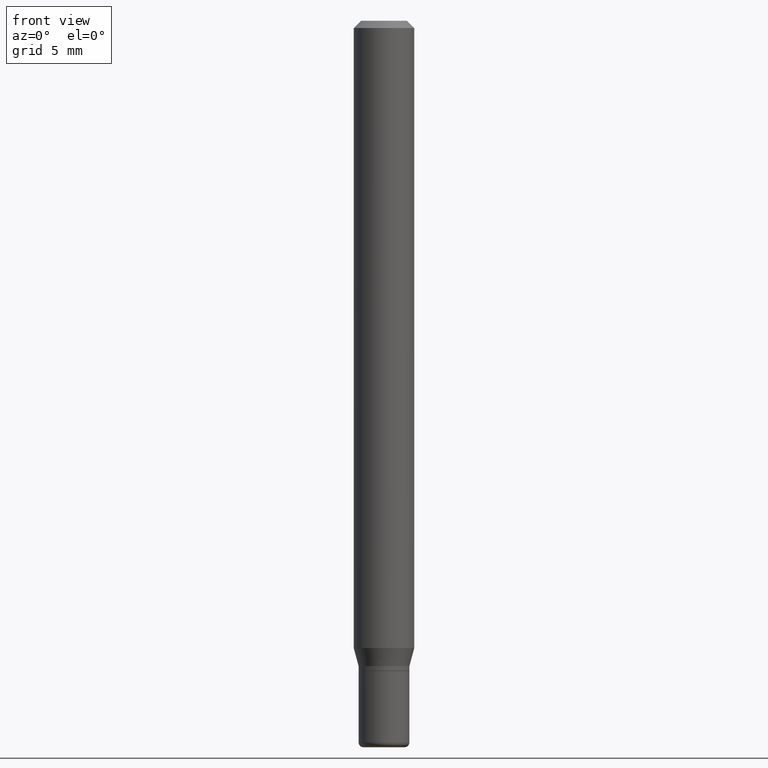
[diagram: clean part render]
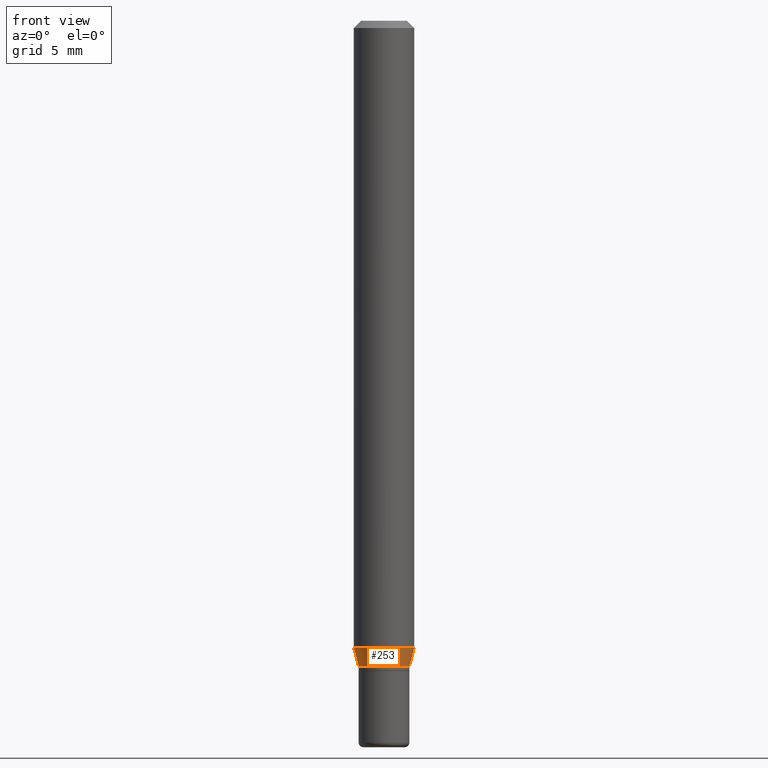
[diagram: same view with one face highlighted and labeled with its STEP entity id]
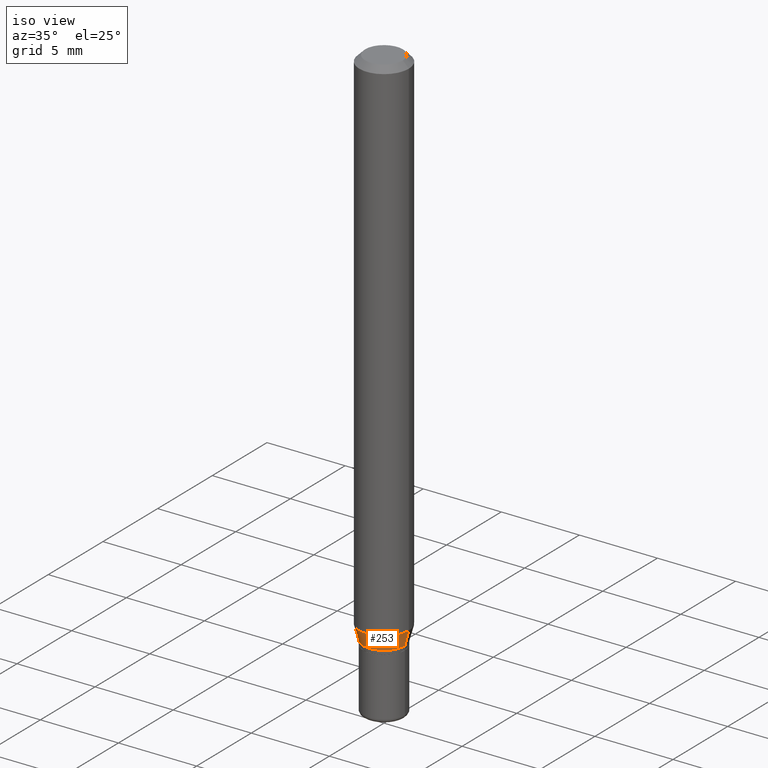
[diagram: same view with one face highlighted and labeled with its STEP entity id]
A machine part, front view. The second image highlights one B-rep face of the part: STEP entity #253.
A second angle (iso view) of the same face is appended — the face is thin or edge-on in the first view.
In plain terms, the highlighted conical surface has half-angle 15 deg.
Its self-contained STEP definition (entity closure, byte-faithful):
#3 = CONICAL_SURFACE ( 'NONE', #121, 0.05249999999999998418, 0.2617993877991485197 ) ;
#6 = EDGE_CURVE ( 'NONE', #310, #7, #209, .T. ) ;
#7 = VERTEX_POINT ( 'NONE', #11 ) ;
#11 = CARTESIAN_POINT ( 'NONE',  ( -0.06250000000000000000, -4.078005816656016392E-15, -1.295179491924311144 ) ) ;
#17 = FACE_OUTER_BOUND ( 'NONE', #475, .T. ) ;
#21 = CIRCLE ( 'NONE', #316, 0.06250000000000000000 ) ;
#23 = LINE ( 'NONE', #502, #205 ) ;
#24 = DIRECTION ( 'NONE',  ( -2.445468806185136597E-29, 3.491481338843145583E-15, 1.000000000000000000 ) ) ;
#45 = EDGE_CURVE ( 'NONE', #310, #149, #184, .T. ) ;
#76 = EDGE_CURVE ( 'NONE', #7, #251, #21, .T. ) ;
#121 = AXIS2_PLACEMENT_3D ( 'NONE', #212, #331, #128 ) ;
#128 = DIRECTION ( 'NONE',  ( 1.000000000000000000, -6.982962677686269866E-15, 0.000000000000000000 ) ) ;
#141 = DIRECTION ( 'NONE',  ( 1.000000000000000000, -6.982962677686262766E-15, 0.000000000000000000 ) ) ;
#149 = VERTEX_POINT ( 'NONE', #176 ) ;
#154 = ORIENTED_EDGE ( 'NONE', *, *, #361, .T. ) ;
#176 = CARTESIAN_POINT ( 'NONE',  ( 0.05249999999999998418, -5.019004424587020764E-15, -1.332500000000000018 ) ) ;
#183 = CARTESIAN_POINT ( 'NONE',  ( 3.167321045911617148E-29, -4.522095026506079008E-15, -1.295179491924311144 ) ) ;
#184 = CIRCLE ( 'NONE', #474, 0.05249999999999998418 ) ;
#185 = CARTESIAN_POINT ( 'NONE',  ( 0.06250000000000000000, -4.958530193861471467E-15, -1.295179491924311144 ) ) ;
#194 = DIRECTION ( 'NONE',  ( 0.2588190451025199623, 1.565188264969633209E-15, 0.9659258262890685343 ) ) ;
#205 = VECTOR ( 'NONE', #194, 39.37007874015748143 ) ;
#209 = LINE ( 'NONE', #370, #403 ) ;
#212 = CARTESIAN_POINT ( 'NONE',  ( 3.258587184241694874E-29, -4.652398884008491604E-15, -1.332500000000000018 ) ) ;
#248 = ORIENTED_EDGE ( 'NONE', *, *, #45, .T. ) ;
#249 = DIRECTION ( 'NONE',  ( 1.000000000000000000, -6.982962677686269866E-15, 0.000000000000000000 ) ) ;
#251 = VERTEX_POINT ( 'NONE', #185 ) ;
#253 = ADVANCED_FACE ( 'NONE', ( #17 ), #3, .T. ) ;
#310 = VERTEX_POINT ( 'NONE', #345 ) ;
#316 = AXIS2_PLACEMENT_3D ( 'NONE', #183, #24, #141 ) ;
#331 = DIRECTION ( 'NONE',  ( -2.445468806185136597E-29, 3.491481338843145583E-15, 1.000000000000000000 ) ) ;
#342 = ORIENTED_EDGE ( 'NONE', *, *, #6, .F. ) ;
#345 = CARTESIAN_POINT ( 'NONE',  ( -0.05249999999999998418, -4.178684882195227337E-15, -1.332500000000000018 ) ) ;
#352 = ORIENTED_EDGE ( 'NONE', *, *, #76, .F. ) ;
#361 = EDGE_CURVE ( 'NONE', #149, #251, #23, .T. ) ;
#370 = CARTESIAN_POINT ( 'NONE',  ( -0.05249999999999998418, -4.279363947734439070E-15, -1.332500000000000018 ) ) ;
#374 = DIRECTION ( 'NONE',  ( -0.2588190451025199623, 5.211531920934541575E-15, 0.9659258262890685343 ) ) ;
#403 = VECTOR ( 'NONE', #374, 39.37007874015748143 ) ;
#459 = DIRECTION ( 'NONE',  ( -2.445468806185136597E-29, 3.491481338843145583E-15, 1.000000000000000000 ) ) ;
#474 = AXIS2_PLACEMENT_3D ( 'NONE', #492, #459, #249 ) ;
#475 = EDGE_LOOP ( 'NONE', ( #342, #248, #154, #352 ) ) ;
#492 = CARTESIAN_POINT ( 'NONE',  ( 3.258587184241694874E-29, -4.652398884008491604E-15, -1.332500000000000018 ) ) ;
#502 = CARTESIAN_POINT ( 'NONE',  ( 0.05249999999999998418, -5.019004424587020764E-15, -1.332500000000000018 ) ) ;